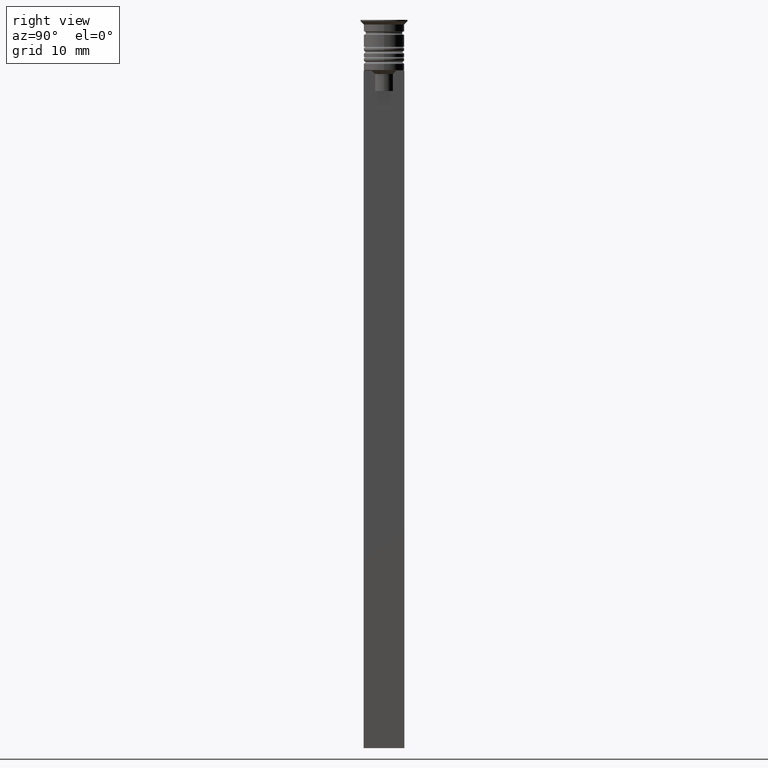
[diagram: clean part render]
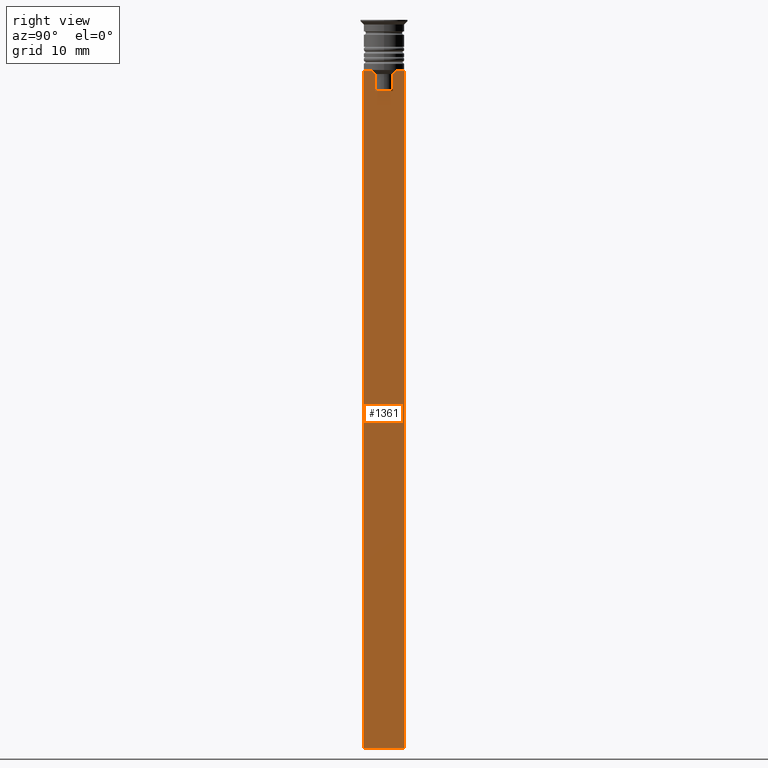
[diagram: same view with one face highlighted and labeled with its STEP entity id]
A machine part, right view. The second image highlights one B-rep face of the part: STEP entity #1361.
In plain terms, the highlighted planar face has unit normal (-1, 0, 0).
Its self-contained STEP definition (entity closure, byte-faithful):
#19 = CARTESIAN_POINT ( 'NONE',  ( 0.4999999999999998890, 1.484355510416485835, -7.834966642958598015 ) ) ;
#54 = DIRECTION ( 'NONE',  ( 0.000000000000000000, 0.000000000000000000, -1.000000000000000000 ) ) ;
#69 = VERTEX_POINT ( 'NONE', #1574 ) ;
#79 = CARTESIAN_POINT ( 'NONE',  ( 0.4999999999999998890, -1.307669683062199439, 0.000000000000000000 ) ) ;
#80 = EDGE_CURVE ( 'NONE', #377, #402, #552, .T. ) ;
#101 = VECTOR ( 'NONE', #1907, 1000.000000000000000 ) ;
#109 = EDGE_CURVE ( 'NONE', #316, #377, #1654, .T. ) ;
#152 = CARTESIAN_POINT ( 'NONE',  ( 0.4999999999999998890, -1.307669683062199439, -10.49999999999999822 ) ) ;
#156 = LINE ( 'NONE', #1762, #1184 ) ;
#168 = AXIS2_PLACEMENT_3D ( 'NONE', #2116, #825, #2212 ) ;
#188 = CARTESIAN_POINT ( 'NONE',  ( 0.4999999999999998890, -2.856571371417139904, -7.500000000000000000 ) ) ;
#221 = B_SPLINE_CURVE_WITH_KNOTS ( 'NONE', 3,
 ( #938, #1639, #19, #2155 ),
 .UNSPECIFIED., .F., .F.,
 ( 4, 4 ),
 ( 0.003278537493109848298, 0.004003794023484941178 ),
 .UNSPECIFIED. ) ;
#223 = ORIENTED_EDGE ( 'NONE', *, *, #109, .T. ) ;
#251 = B_SPLINE_CURVE_WITH_KNOTS ( 'NONE', 3,
 ( #342, #1393, #1608, #1254 ),
 .UNSPECIFIED., .F., .F.,
 ( 4, 4 ),
 ( 0.007225659348748082224, 0.007950554640278054835 ),
 .UNSPECIFIED. ) ;
#316 = VERTEX_POINT ( 'NONE', #515 ) ;
#318 = CARTESIAN_POINT ( 'NONE',  ( 0.4999999999999998890, 1.833030277982335754, -7.500000000000000000 ) ) ;
#342 = CARTESIAN_POINT ( 'NONE',  ( 0.4999999999999998890, -1.307669683062199439, -8.000000000000000000 ) ) ;
#357 = EDGE_CURVE ( 'NONE', #1121, #1871, #156, .T. ) ;
#377 = VERTEX_POINT ( 'NONE', #1376 ) ;
#402 = VERTEX_POINT ( 'NONE', #318 ) ;
#420 = EDGE_CURVE ( 'NONE', #615, #69, #1945, .T. ) ;
#428 = LINE ( 'NONE', #1325, #1230 ) ;
#432 = VERTEX_POINT ( 'NONE', #1999 ) ;
#463 = LINE ( 'NONE', #2275, #1571 ) ;
#467 = EDGE_CURVE ( 'NONE', #402, #615, #221, .T. ) ;
#491 = DIRECTION ( 'NONE',  ( 0.000000000000000000, -1.000000000000000000, 0.000000000000000000 ) ) ;
#507 = EDGE_CURVE ( 'NONE', #2321, #432, #1602, .T. ) ;
#515 = CARTESIAN_POINT ( 'NONE',  ( 0.4999999999999998890, 3.000000000000000000, -7.500000000000000000 ) ) ;
#552 = LINE ( 'NONE', #1980, #2007 ) ;
#560 = ORIENTED_EDGE ( 'NONE', *, *, #1164, .T. ) ;
#573 = CARTESIAN_POINT ( 'NONE',  ( 0.4999999999999998890, -3.000000000000000000, -107.5000000000000000 ) ) ;
#615 = VERTEX_POINT ( 'NONE', #834 ) ;
#655 = ORIENTED_EDGE ( 'NONE', *, *, #80, .T. ) ;
#672 = ORIENTED_EDGE ( 'NONE', *, *, #2047, .T. ) ;
#674 = DIRECTION ( 'NONE',  ( 0.000000000000000000, 0.000000000000000000, -1.000000000000000000 ) ) ;
#676 = LINE ( 'NONE', #1385, #798 ) ;
#736 = DIRECTION ( 'NONE',  ( 0.000000000000000000, 1.000000000000000000, 0.000000000000000000 ) ) ;
#748 = DIRECTION ( 'NONE',  ( 0.000000000000000000, -1.000000000000000000, 0.000000000000000000 ) ) ;
#760 = ORIENTED_EDGE ( 'NONE', *, *, #507, .T. ) ;
#779 = VERTEX_POINT ( 'NONE', #2225 ) ;
#798 = VECTOR ( 'NONE', #491, 1000.000000000000000 ) ;
#825 = DIRECTION ( 'NONE',  ( -1.000000000000000000, 0.000000000000000000, 0.000000000000000000 ) ) ;
#834 = CARTESIAN_POINT ( 'NONE',  ( 0.4999999999999998890, 1.307669683062199439, -8.000000000000000000 ) ) ;
#884 = DIRECTION ( 'NONE',  ( 0.000000000000000000, 0.000000000000000000, -1.000000000000000000 ) ) ;
#887 = EDGE_LOOP ( 'NONE', ( #655, #918, #1326, #560, #1621, #1200, #672, #2107, #1772, #760, #1147, #223 ) ) ;
#899 = PLANE ( 'NONE',  #168 ) ;
#918 = ORIENTED_EDGE ( 'NONE', *, *, #467, .T. ) ;
#930 = VECTOR ( 'NONE', #736, 1000.000000000000000 ) ;
#938 = CARTESIAN_POINT ( 'NONE',  ( 0.4999999999999998890, 1.833030277982335754, -7.500000000000000000 ) ) ;
#941 = EDGE_CURVE ( 'NONE', #1573, #779, #251, .T. ) ;
#974 = VECTOR ( 'NONE', #1123, 1000.000000000000000 ) ;
#975 = VERTEX_POINT ( 'NONE', #152 ) ;
#1121 = VERTEX_POINT ( 'NONE', #188 ) ;
#1123 = DIRECTION ( 'NONE',  ( 0.000000000000000000, -1.000000000000000000, 0.000000000000000000 ) ) ;
#1147 = ORIENTED_EDGE ( 'NONE', *, *, #1513, .F. ) ;
#1164 = EDGE_CURVE ( 'NONE', #69, #975, #1291, .T. ) ;
#1184 = VECTOR ( 'NONE', #2281, 1000.000000000000000 ) ;
#1187 = LINE ( 'NONE', #79, #101 ) ;
#1200 = ORIENTED_EDGE ( 'NONE', *, *, #941, .T. ) ;
#1207 = FACE_OUTER_BOUND ( 'NONE', #887, .T. ) ;
#1212 = CARTESIAN_POINT ( 'NONE',  ( 0.4999999999999998890, -1.307669683062199439, -8.000000000000000000 ) ) ;
#1215 = CARTESIAN_POINT ( 'NONE',  ( 0.4999999999999998890, 1.307669683062199439, 0.000000000000000000 ) ) ;
#1230 = VECTOR ( 'NONE', #54, 1000.000000000000000 ) ;
#1253 = CARTESIAN_POINT ( 'NONE',  ( 0.4999999999999998890, -3.000000000000000000, -7.500000000000000000 ) ) ;
#1254 = CARTESIAN_POINT ( 'NONE',  ( 0.4999999999999998890, -1.833030277982335754, -7.500000000000000000 ) ) ;
#1291 = LINE ( 'NONE', #2173, #974 ) ;
#1325 = CARTESIAN_POINT ( 'NONE',  ( 0.4999999999999998890, 3.000000000000000000, -1.417237469701779329 ) ) ;
#1326 = ORIENTED_EDGE ( 'NONE', *, *, #420, .T. ) ;
#1361 = ADVANCED_FACE ( 'NONE', ( #1207 ), #899, .F. ) ;
#1376 = CARTESIAN_POINT ( 'NONE',  ( 0.4999999999999998890, 2.856571371417139904, -7.500000000000000000 ) ) ;
#1382 = VECTOR ( 'NONE', #884, 1000.000000000000000 ) ;
#1385 = CARTESIAN_POINT ( 'NONE',  ( 0.4999999999999998890, -3.000000000000000000, -7.500000000000000000 ) ) ;
#1393 = CARTESIAN_POINT ( 'NONE',  ( 0.4999999999999998890, -1.484307477388859153, -7.835011508197190722 ) ) ;
#1513 = EDGE_CURVE ( 'NONE', #316, #432, #428, .T. ) ;
#1525 = CARTESIAN_POINT ( 'NONE',  ( 0.4999999999999998890, -3.000000000000000000, -107.5000000000000000 ) ) ;
#1571 = VECTOR ( 'NONE', #674, 1000.000000000000000 ) ;
#1573 = VERTEX_POINT ( 'NONE', #1212 ) ;
#1574 = CARTESIAN_POINT ( 'NONE',  ( 0.4999999999999998890, 1.307669683062199439, -10.49999999999999822 ) ) ;
#1602 = LINE ( 'NONE', #573, #930 ) ;
#1608 = CARTESIAN_POINT ( 'NONE',  ( 0.4999999999999998890, -1.659011726860414093, -7.667884880598472286 ) ) ;
#1621 = ORIENTED_EDGE ( 'NONE', *, *, #2008, .T. ) ;
#1639 = CARTESIAN_POINT ( 'NONE',  ( 0.4999999999999998890, 1.659046061654642967, -7.667851756010362507 ) ) ;
#1654 = LINE ( 'NONE', #1253, #2309 ) ;
#1762 = CARTESIAN_POINT ( 'NONE',  ( 0.4999999999999998890, -3.000000000000000000, -7.500000000000000000 ) ) ;
#1772 = ORIENTED_EDGE ( 'NONE', *, *, #1776, .T. ) ;
#1776 = EDGE_CURVE ( 'NONE', #1871, #2321, #463, .T. ) ;
#1871 = VERTEX_POINT ( 'NONE', #2148 ) ;
#1907 = DIRECTION ( 'NONE',  ( -0.000000000000000000, -0.000000000000000000, 1.000000000000000000 ) ) ;
#1945 = LINE ( 'NONE', #1215, #1382 ) ;
#1980 = CARTESIAN_POINT ( 'NONE',  ( 0.4999999999999998890, -3.000000000000000000, -7.500000000000000000 ) ) ;
#1999 = CARTESIAN_POINT ( 'NONE',  ( 0.4999999999999998890, 3.000000000000000000, -107.5000000000000000 ) ) ;
#2007 = VECTOR ( 'NONE', #2181, 1000.000000000000000 ) ;
#2008 = EDGE_CURVE ( 'NONE', #975, #1573, #1187, .T. ) ;
#2047 = EDGE_CURVE ( 'NONE', #779, #1121, #676, .T. ) ;
#2107 = ORIENTED_EDGE ( 'NONE', *, *, #357, .T. ) ;
#2116 = CARTESIAN_POINT ( 'NONE',  ( 0.4999999999999998890, -3.000000000000000000, -1.417237469701779329 ) ) ;
#2148 = CARTESIAN_POINT ( 'NONE',  ( 0.4999999999999998890, -3.000000000000000000, -7.500000000000000000 ) ) ;
#2155 = CARTESIAN_POINT ( 'NONE',  ( 0.4999999999999998890, 1.307669683062199439, -8.000000000000000000 ) ) ;
#2173 = CARTESIAN_POINT ( 'NONE',  ( 0.4999999999999998890, 1.399999999999997691, -10.49999999999999822 ) ) ;
#2181 = DIRECTION ( 'NONE',  ( 0.000000000000000000, -1.000000000000000000, 0.000000000000000000 ) ) ;
#2212 = DIRECTION ( 'NONE',  ( 0.000000000000000000, 0.000000000000000000, 1.000000000000000000 ) ) ;
#2225 = CARTESIAN_POINT ( 'NONE',  ( 0.4999999999999998890, -1.833030277982335754, -7.500000000000000000 ) ) ;
#2275 = CARTESIAN_POINT ( 'NONE',  ( 0.4999999999999998890, -3.000000000000000000, -1.417237469701779329 ) ) ;
#2281 = DIRECTION ( 'NONE',  ( 0.000000000000000000, -1.000000000000000000, 0.000000000000000000 ) ) ;
#2309 = VECTOR ( 'NONE', #748, 1000.000000000000000 ) ;
#2321 = VERTEX_POINT ( 'NONE', #1525 ) ;